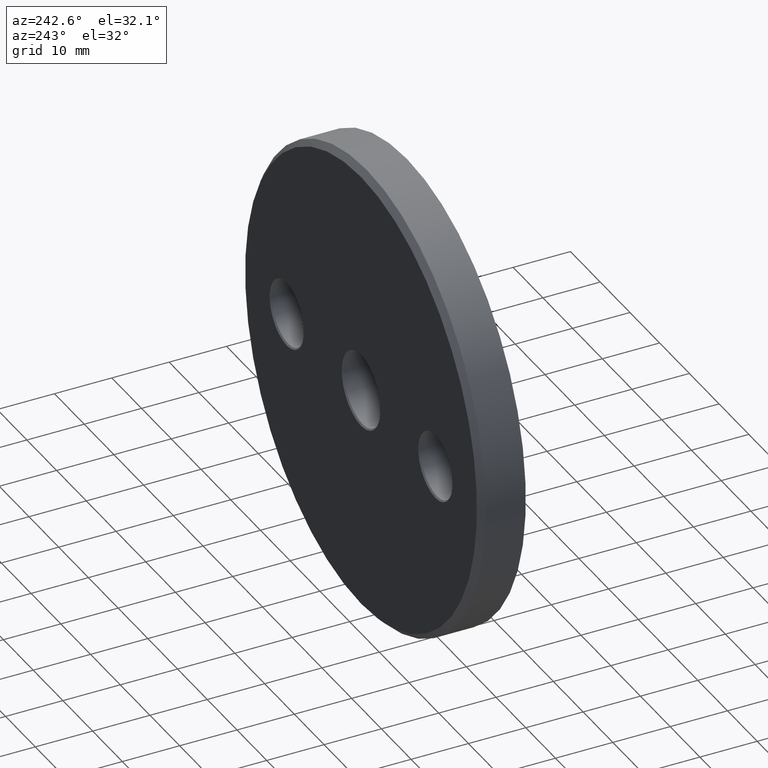
[diagram: clean part render]
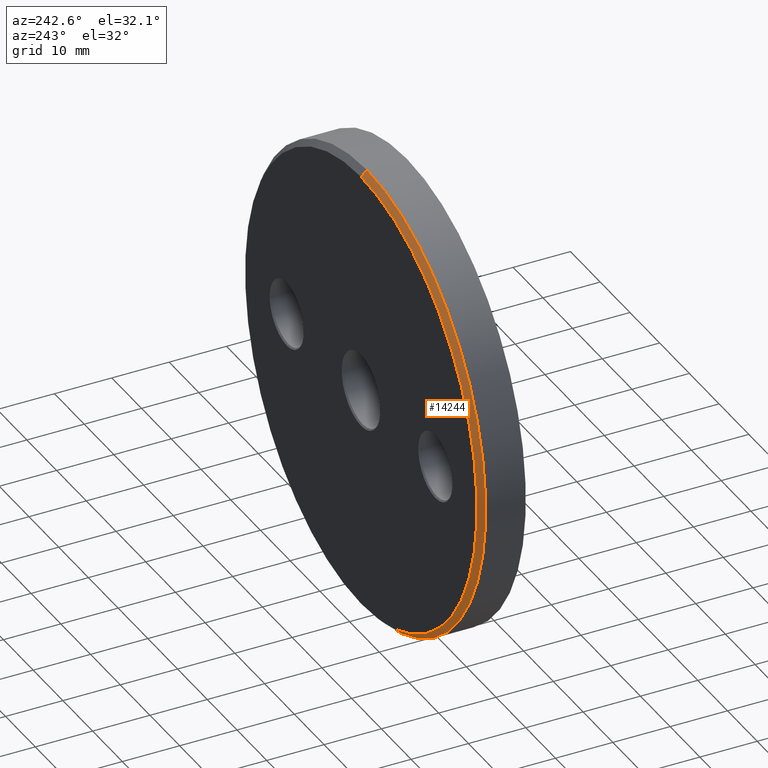
[diagram: same view with one face highlighted and labeled with its STEP entity id]
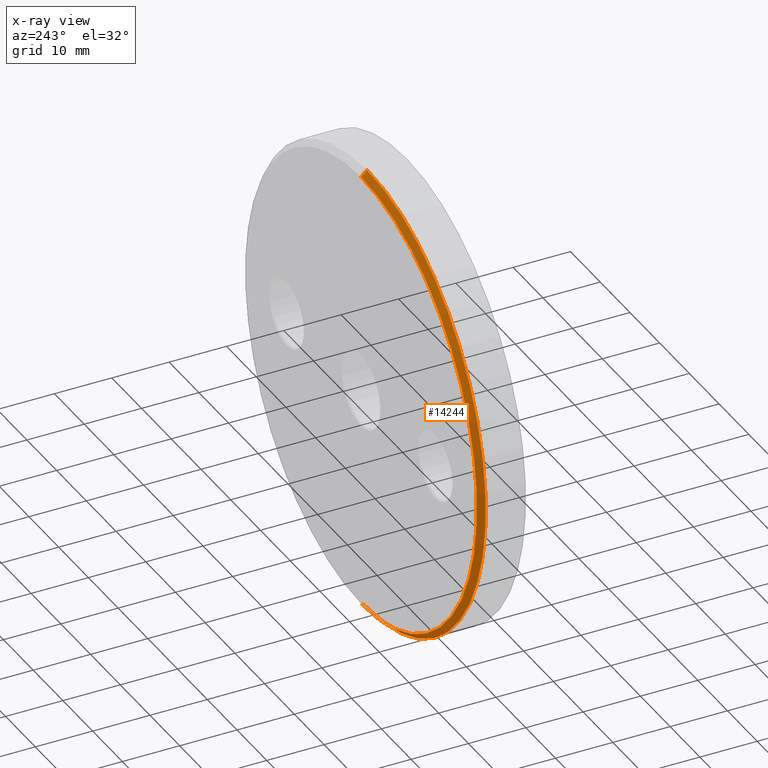
[diagram: x-ray of the same camera — body ghosted, the highlighted face saturated]
A machine part, auxiliary view. The second image highlights one B-rep face of the part: STEP entity #14244.
The next image is the same camera in x-ray: the body ghosted, the highlighted face saturated — about 0% of this face is hidden behind the body in this view.
In plain terms, the highlighted conical surface has half-angle 45 deg.
Its self-contained STEP definition (entity closure, byte-faithful):
#376 = EDGE_CURVE ( 'NONE', #10188, #2929, #11900, .T. ) ;
#1555 = DIRECTION ( 'NONE',  ( 0.000000000000000000, -0.7071067811865524577, -0.7071067811865426878 ) ) ;
#1933 = FACE_OUTER_BOUND ( 'NONE', #6483, .T. ) ;
#2857 = VERTEX_POINT ( 'NONE', #5776 ) ;
#2929 = VERTEX_POINT ( 'NONE', #14006 ) ;
#2941 = DIRECTION ( 'NONE',  ( 0.000000000000000000, -1.000000000000000000, 0.000000000000000000 ) ) ;
#3035 = EDGE_CURVE ( 'NONE', #14742, #2857, #9765, .T. ) ;
#3596 = ORIENTED_EDGE ( 'NONE', *, *, #5466, .F. ) ;
#4111 = DIRECTION ( 'NONE',  ( 8.659560562354873694E-17, -0.7071067811865524577, 0.7071067811865426878 ) ) ;
#4141 = ORIENTED_EDGE ( 'NONE', *, *, #376, .F. ) ;
#4149 = DIRECTION ( 'NONE',  ( 0.000000000000000000, 0.000000000000000000, 1.000000000000000000 ) ) ;
#5466 = EDGE_CURVE ( 'NONE', #2857, #10188, #5671, .T. ) ;
#5671 = LINE ( 'NONE', #9537, #16500 ) ;
#5751 = ORIENTED_EDGE ( 'NONE', *, *, #3035, .F. ) ;
#5776 = CARTESIAN_POINT ( 'NONE',  ( 4.837354856632047030E-15, 8.000000000000000000, 39.00000000000002132 ) ) ;
#6483 = EDGE_LOOP ( 'NONE', ( #3596, #5751, #15897, #4141 ) ) ;
#6729 = VECTOR ( 'NONE', #1555, 1000.000000000000000 ) ;
#6967 = CARTESIAN_POINT ( 'NONE',  ( 0.000000000000000000, 8.000000000000000000, -39.00000000000002132 ) ) ;
#7409 = CARTESIAN_POINT ( 'NONE',  ( 0.000000000000000000, 8.000000000000000000, -39.00000000000002132 ) ) ;
#7901 = EDGE_CURVE ( 'NONE', #14742, #2929, #9002, .T. ) ;
#9002 = LINE ( 'NONE', #6967, #6729 ) ;
#9314 = DIRECTION ( 'NONE',  ( 0.000000000000000000, 1.000000000000000000, 0.000000000000000000 ) ) ;
#9427 = CARTESIAN_POINT ( 'NONE',  ( 0.000000000000000000, 8.000000000000000000, 0.000000000000000000 ) ) ;
#9536 = DIRECTION ( 'NONE',  ( 0.000000000000000000, -1.000000000000000000, 0.000000000000000000 ) ) ;
#9537 = CARTESIAN_POINT ( 'NONE',  ( 4.776122516674680244E-15, 8.000000000000000000, 39.00000000000002132 ) ) ;
#9765 = CIRCLE ( 'NONE', #10639, 39.00000000000002132 ) ;
#10188 = VERTEX_POINT ( 'NONE', #14091 ) ;
#10639 = AXIS2_PLACEMENT_3D ( 'NONE', #9427, #9314, #4149 ) ;
#10757 = DIRECTION ( 'NONE',  ( 0.000000000000000000, 0.000000000000000000, 1.000000000000000000 ) ) ;
#11413 = AXIS2_PLACEMENT_3D ( 'NONE', #12081, #2941, #14807 ) ;
#11900 = CIRCLE ( 'NONE', #17013, 40.00000000000000000 ) ;
#12081 = CARTESIAN_POINT ( 'NONE',  ( 0.000000000000000000, 8.000000000000000000, 0.000000000000000000 ) ) ;
#12248 = CARTESIAN_POINT ( 'NONE',  ( 0.000000000000000000, 7.000000000000006217, 0.000000000000000000 ) ) ;
#13319 = CONICAL_SURFACE ( 'NONE', #11413, 39.00000000000002132, 0.7853981633974415066 ) ;
#14006 = CARTESIAN_POINT ( 'NONE',  ( 0.000000000000000000, 7.000000000000006217, -40.00000000000000000 ) ) ;
#14091 = CARTESIAN_POINT ( 'NONE',  ( 4.898587196589413026E-15, 7.000000000000006217, 40.00000000000000000 ) ) ;
#14244 = ADVANCED_FACE ( 'NONE', ( #1933 ), #13319, .T. ) ;
#14742 = VERTEX_POINT ( 'NONE', #7409 ) ;
#14807 = DIRECTION ( 'NONE',  ( 0.000000000000000000, 0.000000000000000000, -1.000000000000000000 ) ) ;
#15897 = ORIENTED_EDGE ( 'NONE', *, *, #7901, .T. ) ;
#16500 = VECTOR ( 'NONE', #4111, 1000.000000000000000 ) ;
#17013 = AXIS2_PLACEMENT_3D ( 'NONE', #12248, #9536, #10757 ) ;